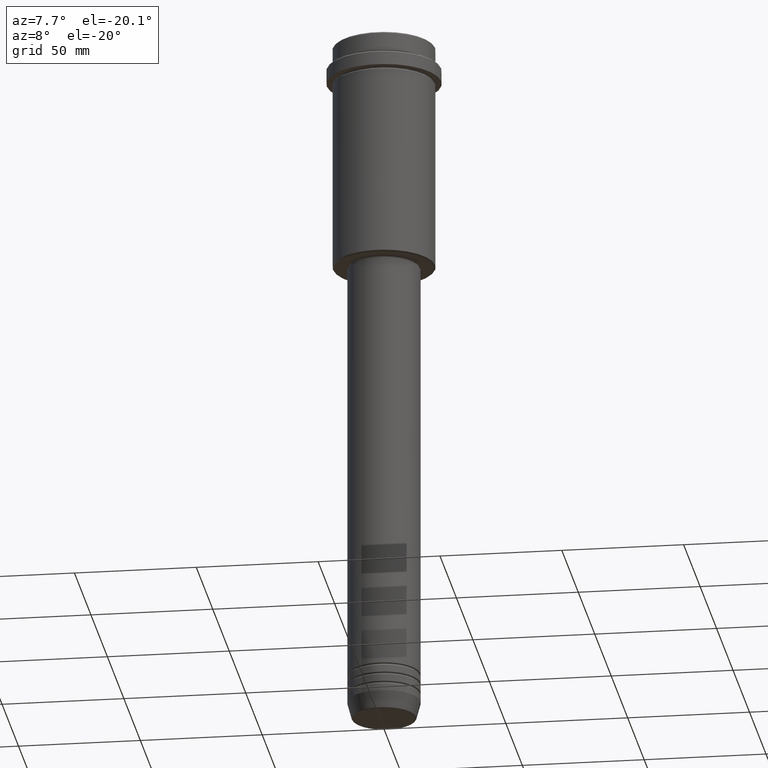
[diagram: clean part render]
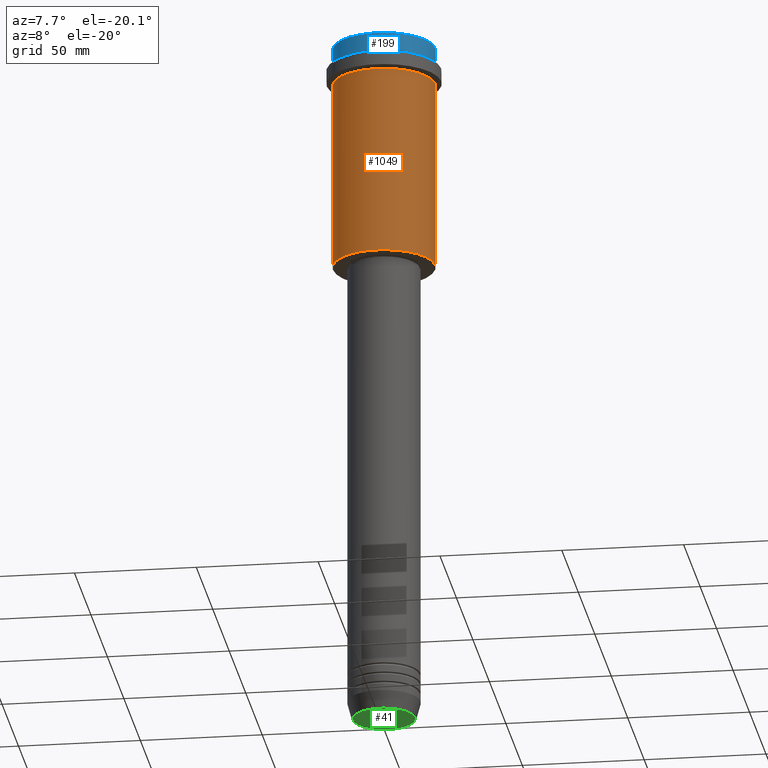
[diagram: same view with three faces highlighted in distinct colors, each labeled with its STEP entity id]
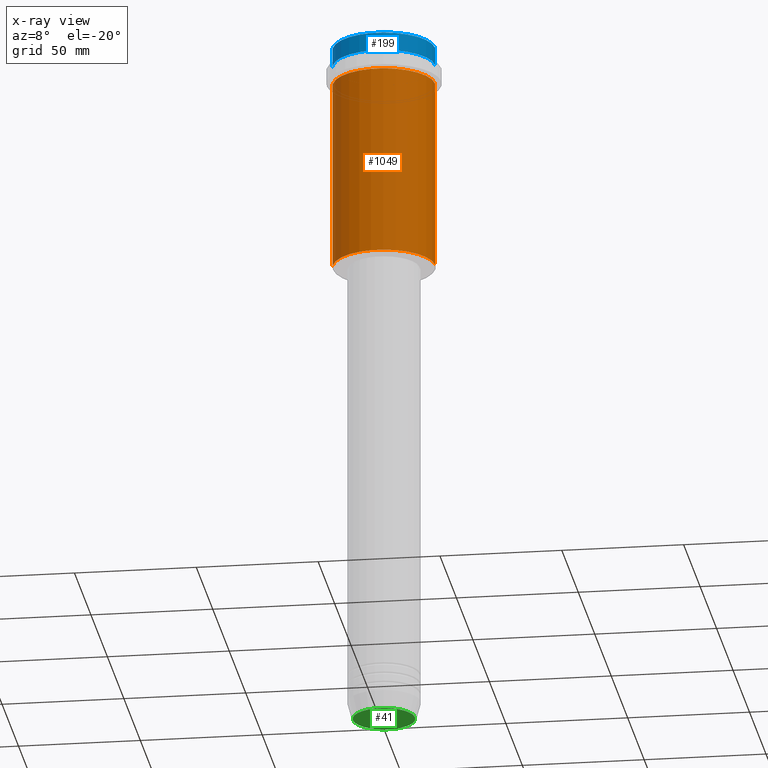
[diagram: x-ray of the same camera — body ghosted, the three highlighted faces saturated]
A machine part, auxiliary view with three faces highlighted in distinct colors.
The next image is the same camera in x-ray (body ghosted, the three faces saturated) — at least one of them is partly hidden behind the body in this view.
Their STEP definitions:

[orange] entity #1049 — the highlighted cylindrical surface (partial cylindrical patch) has radius 21 mm, axis along (-0, -0, 1).
#25 = EDGE_CURVE ( 'NONE', #851, #1039, #407, .T. ) ;
#47 = ORIENTED_EDGE ( 'NONE', *, *, #25, .F. ) ;
#80 = ORIENTED_EDGE ( 'NONE', *, *, #605, .F. ) ;
#111 = CIRCLE ( 'NONE', #1324, 20.99999999999999645 ) ;
#190 = EDGE_CURVE ( 'NONE', #300, #1005, #449, .T. ) ;
#300 = VERTEX_POINT ( 'NONE', #801 ) ;
#305 = CARTESIAN_POINT ( 'NONE',  ( 20.99999999999999645, 0.000000000000000000, 0.000000000000000000 ) ) ;
#318 = CARTESIAN_POINT ( 'NONE',  ( 0.000000000000000000, 0.000000000000000000, -16.00000000000000355 ) ) ;
#396 = DIRECTION ( 'NONE',  ( -0.000000000000000000, -0.000000000000000000, 1.000000000000000000 ) ) ;
#407 = LINE ( 'NONE', #931, #1296 ) ;
#449 = LINE ( 'NONE', #305, #522 ) ;
#467 = DIRECTION ( 'NONE',  ( -1.000000000000000000, 0.000000000000000000, 0.000000000000000000 ) ) ;
#522 = VECTOR ( 'NONE', #742, 1000.000000000000000 ) ;
#545 = AXIS2_PLACEMENT_3D ( 'NONE', #318, #657, #1185 ) ;
#605 = EDGE_CURVE ( 'NONE', #1039, #1005, #1019, .T. ) ;
#623 = ORIENTED_EDGE ( 'NONE', *, *, #190, .T. ) ;
#651 = CARTESIAN_POINT ( 'NONE',  ( 20.99999999999999645, 0.000000000000000000, -16.00000000000000355 ) ) ;
#657 = DIRECTION ( 'NONE',  ( -0.000000000000000000, -0.000000000000000000, 1.000000000000000000 ) ) ;
#676 = EDGE_CURVE ( 'NONE', #851, #300, #111, .T. ) ;
#705 = ORIENTED_EDGE ( 'NONE', *, *, #676, .T. ) ;
#725 = CARTESIAN_POINT ( 'NONE',  ( -20.99999999999999645, 2.571758278209441267E-15, -94.49999999999995737 ) ) ;
#742 = DIRECTION ( 'NONE',  ( -0.000000000000000000, -0.000000000000000000, 1.000000000000000000 ) ) ;
#801 = CARTESIAN_POINT ( 'NONE',  ( 20.99999999999999645, 0.000000000000000000, -94.49999999999995737 ) ) ;
#849 = CARTESIAN_POINT ( 'NONE',  ( -20.99999999999999645, 2.571758278209441267E-15, -16.00000000000000355 ) ) ;
#851 = VERTEX_POINT ( 'NONE', #725 ) ;
#931 = CARTESIAN_POINT ( 'NONE',  ( -20.99999999999999645, 2.571758278209441267E-15, 0.000000000000000000 ) ) ;
#955 = EDGE_LOOP ( 'NONE', ( #47, #705, #623, #80 ) ) ;
#969 = DIRECTION ( 'NONE',  ( -0.000000000000000000, -0.000000000000000000, 1.000000000000000000 ) ) ;
#1004 = AXIS2_PLACEMENT_3D ( 'NONE', #1163, #969, #1182 ) ;
#1005 = VERTEX_POINT ( 'NONE', #651 ) ;
#1008 = DIRECTION ( 'NONE',  ( -0.000000000000000000, -0.000000000000000000, 1.000000000000000000 ) ) ;
#1019 = CIRCLE ( 'NONE', #545, 20.99999999999999645 ) ;
#1039 = VERTEX_POINT ( 'NONE', #849 ) ;
#1049 = ADVANCED_FACE ( 'NONE', ( #1385 ), #1191, .T. ) ;
#1163 = CARTESIAN_POINT ( 'NONE',  ( 0.000000000000000000, 0.000000000000000000, 0.000000000000000000 ) ) ;
#1182 = DIRECTION ( 'NONE',  ( 1.000000000000000000, 0.000000000000000000, 0.000000000000000000 ) ) ;
#1185 = DIRECTION ( 'NONE',  ( 1.000000000000000000, 0.000000000000000000, 0.000000000000000000 ) ) ;
#1191 = CYLINDRICAL_SURFACE ( 'NONE', #1004, 20.99999999999999645 ) ;
#1281 = CARTESIAN_POINT ( 'NONE',  ( 0.000000000000000000, 0.000000000000000000, -94.49999999999995737 ) ) ;
#1296 = VECTOR ( 'NONE', #396, 1000.000000000000000 ) ;
#1324 = AXIS2_PLACEMENT_3D ( 'NONE', #1281, #1008, #467 ) ;
#1385 = FACE_OUTER_BOUND ( 'NONE', #955, .T. ) ;

[blue] entity #199 — the highlighted cylindrical surface (partial cylindrical patch) has radius 21 mm, axis along (-0, -0, 1).
#8 = DIRECTION ( 'NONE',  ( 1.000000000000000000, 0.000000000000000000, 0.000000000000000000 ) ) ;
#16 = AXIS2_PLACEMENT_3D ( 'NONE', #1177, #852, #858 ) ;
#95 = CYLINDRICAL_SURFACE ( 'NONE', #16, 20.99999999999999645 ) ;
#112 = ORIENTED_EDGE ( 'NONE', *, *, #910, .T. ) ;
#147 = DIRECTION ( 'NONE',  ( 1.000000000000000000, 0.000000000000000000, 0.000000000000000000 ) ) ;
#173 = EDGE_CURVE ( 'NONE', #316, #1247, #456, .T. ) ;
#174 = LINE ( 'NONE', #584, #1181 ) ;
#199 = ADVANCED_FACE ( 'NONE', ( #1399 ), #95, .T. ) ;
#203 = CIRCLE ( 'NONE', #1002, 20.99999999999999645 ) ;
#316 = VERTEX_POINT ( 'NONE', #698 ) ;
#390 = VECTOR ( 'NONE', #592, 1000.000000000000000 ) ;
#404 = CARTESIAN_POINT ( 'NONE',  ( -20.99999999999999645, 2.571758278209441267E-15, -0.4999999999999796274 ) ) ;
#456 = CIRCLE ( 'NONE', #566, 20.99999999999999645 ) ;
#512 = VERTEX_POINT ( 'NONE', #1076 ) ;
#566 = AXIS2_PLACEMENT_3D ( 'NONE', #747, #1092, #8 ) ;
#582 = ORIENTED_EDGE ( 'NONE', *, *, #918, .T. ) ;
#584 = CARTESIAN_POINT ( 'NONE',  ( -20.99999999999999645, 2.571758278209441267E-15, 0.000000000000000000 ) ) ;
#592 = DIRECTION ( 'NONE',  ( -0.000000000000000000, -0.000000000000000000, 1.000000000000000000 ) ) ;
#640 = EDGE_LOOP ( 'NONE', ( #678, #1131, #582, #112 ) ) ;
#678 = ORIENTED_EDGE ( 'NONE', *, *, #921, .F. ) ;
#698 = CARTESIAN_POINT ( 'NONE',  ( -20.99999999999999645, 2.571758278209441267E-15, -7.999999999999998224 ) ) ;
#747 = CARTESIAN_POINT ( 'NONE',  ( 0.000000000000000000, 0.000000000000000000, -7.999999999999998224 ) ) ;
#852 = DIRECTION ( 'NONE',  ( -0.000000000000000000, -0.000000000000000000, 1.000000000000000000 ) ) ;
#858 = DIRECTION ( 'NONE',  ( 1.000000000000000000, 0.000000000000000000, 0.000000000000000000 ) ) ;
#898 = VERTEX_POINT ( 'NONE', #404 ) ;
#910 = EDGE_CURVE ( 'NONE', #512, #898, #203, .T. ) ;
#918 = EDGE_CURVE ( 'NONE', #1247, #512, #1371, .T. ) ;
#921 = EDGE_CURVE ( 'NONE', #316, #898, #174, .T. ) ;
#1002 = AXIS2_PLACEMENT_3D ( 'NONE', #1041, #1142, #147 ) ;
#1033 = DIRECTION ( 'NONE',  ( -0.000000000000000000, -0.000000000000000000, 1.000000000000000000 ) ) ;
#1041 = CARTESIAN_POINT ( 'NONE',  ( 0.000000000000000000, 0.000000000000000000, -0.4999999999999796274 ) ) ;
#1076 = CARTESIAN_POINT ( 'NONE',  ( 20.99999999999999645, 0.000000000000000000, -0.4999999999999796274 ) ) ;
#1092 = DIRECTION ( 'NONE',  ( -0.000000000000000000, -0.000000000000000000, 1.000000000000000000 ) ) ;
#1131 = ORIENTED_EDGE ( 'NONE', *, *, #173, .T. ) ;
#1142 = DIRECTION ( 'NONE',  ( 0.000000000000000000, 0.000000000000000000, -1.000000000000000000 ) ) ;
#1153 = CARTESIAN_POINT ( 'NONE',  ( 20.99999999999999645, 0.000000000000000000, 0.000000000000000000 ) ) ;
#1177 = CARTESIAN_POINT ( 'NONE',  ( 0.000000000000000000, 0.000000000000000000, 0.000000000000000000 ) ) ;
#1181 = VECTOR ( 'NONE', #1033, 1000.000000000000000 ) ;
#1196 = CARTESIAN_POINT ( 'NONE',  ( 20.99999999999999645, 0.000000000000000000, -7.999999999999998224 ) ) ;
#1247 = VERTEX_POINT ( 'NONE', #1196 ) ;
#1371 = LINE ( 'NONE', #1153, #390 ) ;
#1399 = FACE_OUTER_BOUND ( 'NONE', #640, .T. ) ;

[green] entity #41 — the highlighted planar face has unit normal (0, -0, 1).
#41 = ADVANCED_FACE ( 'NONE', ( #401 ), #831, .F. ) ;
#129 = DIRECTION ( 'NONE',  ( 0.000000000000000000, 0.000000000000000000, -1.000000000000000000 ) ) ;
#175 = AXIS2_PLACEMENT_3D ( 'NONE', #1389, #1138, #186 ) ;
#186 = DIRECTION ( 'NONE',  ( 1.000000000000000000, 0.000000000000000000, 0.000000000000000000 ) ) ;
#290 = CIRCLE ( 'NONE', #1117, 12.74069215899265828 ) ;
#333 = EDGE_CURVE ( 'NONE', #518, #1370, #290, .T. ) ;
#398 = EDGE_LOOP ( 'NONE', ( #612, #1010 ) ) ;
#401 = FACE_OUTER_BOUND ( 'NONE', #398, .T. ) ;
#441 = CIRCLE ( 'NONE', #1249, 12.74069215899265828 ) ;
#518 = VERTEX_POINT ( 'NONE', #525 ) ;
#525 = CARTESIAN_POINT ( 'NONE',  ( 12.74069215899265828, 0.000000000000000000, -290.0000000000000568 ) ) ;
#565 = DIRECTION ( 'NONE',  ( 1.000000000000000000, 0.000000000000000000, 0.000000000000000000 ) ) ;
#612 = ORIENTED_EDGE ( 'NONE', *, *, #333, .T. ) ;
#628 = DIRECTION ( 'NONE',  ( 1.000000000000000000, 0.000000000000000000, 0.000000000000000000 ) ) ;
#831 = PLANE ( 'NONE',  #175 ) ;
#997 = EDGE_CURVE ( 'NONE', #1370, #518, #441, .T. ) ;
#1010 = ORIENTED_EDGE ( 'NONE', *, *, #997, .T. ) ;
#1054 = CARTESIAN_POINT ( 'NONE',  ( -12.74069215899265828, 1.589857736427680246E-15, -290.0000000000000568 ) ) ;
#1117 = AXIS2_PLACEMENT_3D ( 'NONE', #1119, #129, #565 ) ;
#1119 = CARTESIAN_POINT ( 'NONE',  ( 0.000000000000000000, 0.000000000000000000, -290.0000000000000568 ) ) ;
#1138 = DIRECTION ( 'NONE',  ( 0.000000000000000000, -0.000000000000000000, 1.000000000000000000 ) ) ;
#1249 = AXIS2_PLACEMENT_3D ( 'NONE', #1406, #1291, #628 ) ;
#1291 = DIRECTION ( 'NONE',  ( 0.000000000000000000, 0.000000000000000000, -1.000000000000000000 ) ) ;
#1370 = VERTEX_POINT ( 'NONE', #1054 ) ;
#1389 = CARTESIAN_POINT ( 'NONE',  ( 0.000000000000000000, 0.000000000000000000, -290.0000000000000568 ) ) ;
#1406 = CARTESIAN_POINT ( 'NONE',  ( 0.000000000000000000, 0.000000000000000000, -290.0000000000000568 ) ) ;